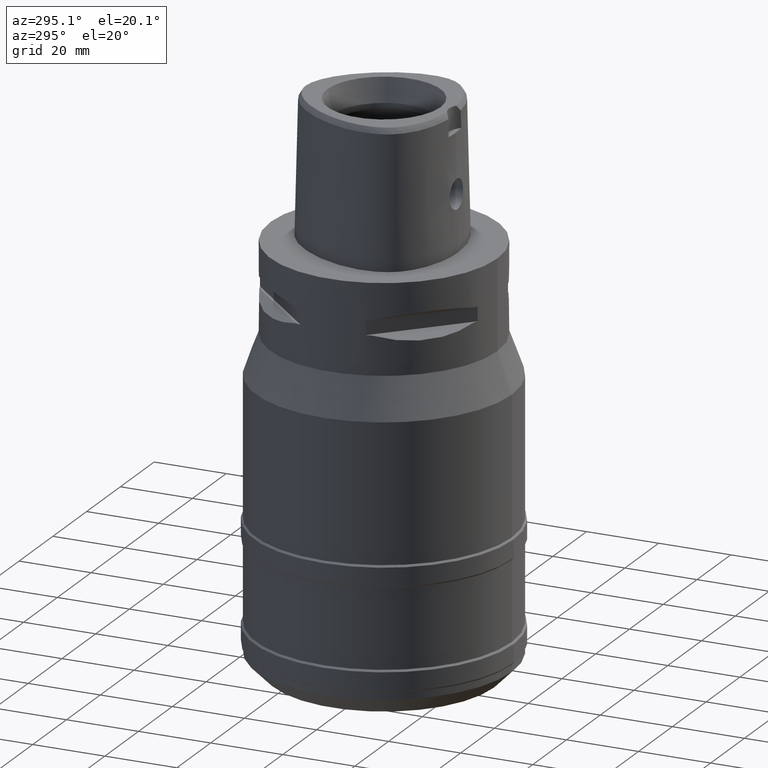
[diagram: clean part render]
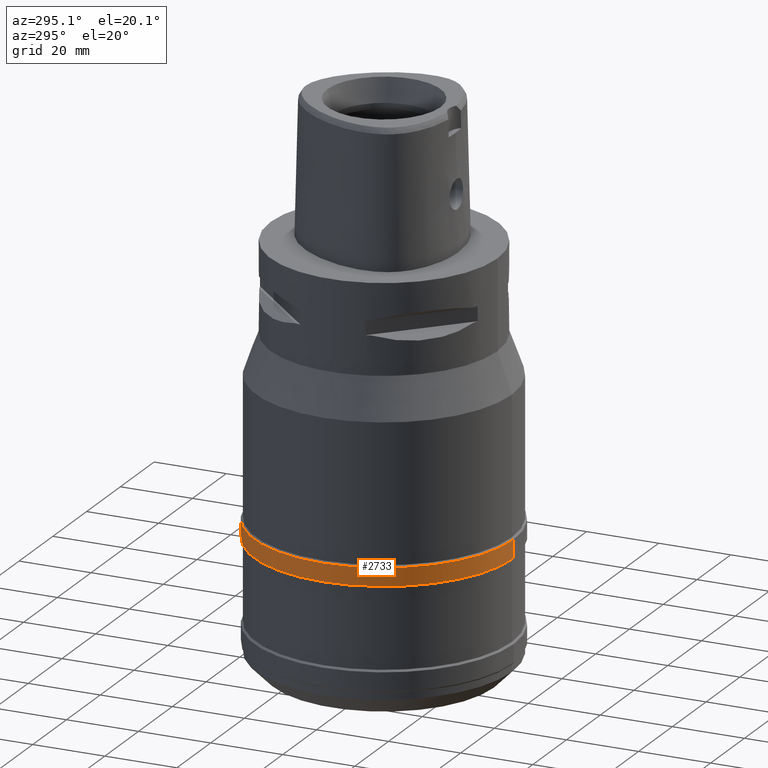
[diagram: same view with one face highlighted and labeled with its STEP entity id]
A machine part, auxiliary view. The second image highlights one B-rep face of the part: STEP entity #2733.
In plain terms, the highlighted cylindrical surface (partial cylindrical patch) has radius 36 mm, axis along (0, 0, -1).
Its self-contained STEP definition (entity closure, byte-faithful):
#640=CARTESIAN_POINT('',(0.E0,0.E0,-7.45E1));
#641=DIRECTION('',(0.E0,0.E0,-1.E0));
#642=DIRECTION('',(0.E0,-1.E0,0.E0));
#643=AXIS2_PLACEMENT_3D('',#640,#641,#642);
#648=DIRECTION('',(0.E0,0.E0,-1.E0));
#649=VECTOR('',#648,5.E0);
#650=CARTESIAN_POINT('',(0.E0,-3.6E1,-7.45E1));
#651=LINE('',#650,#649);
#655=DIRECTION('',(0.E0,0.E0,-1.E0));
#656=VECTOR('',#655,5.E0);
#657=CARTESIAN_POINT('',(0.E0,3.6E1,-7.45E1));
#658=LINE('',#657,#656);
#685=CARTESIAN_POINT('',(0.E0,0.E0,-7.95E1));
#686=DIRECTION('',(0.E0,0.E0,1.E0));
#687=DIRECTION('',(0.E0,1.E0,0.E0));
#688=AXIS2_PLACEMENT_3D('',#685,#686,#687);
#1748=CARTESIAN_POINT('',(0.E0,3.6E1,-7.45E1));
#1749=VERTEX_POINT('',#1748);
#1750=CARTESIAN_POINT('',(0.E0,-3.6E1,-7.45E1));
#1751=VERTEX_POINT('',#1750);
#1752=CARTESIAN_POINT('',(0.E0,3.6E1,-7.95E1));
#1753=VERTEX_POINT('',#1752);
#1754=CARTESIAN_POINT('',(0.E0,-3.6E1,-7.95E1));
#1755=VERTEX_POINT('',#1754);
#2719=CARTESIAN_POINT('',(0.E0,1.295063990098E-14,5.75E0));
#2720=DIRECTION('',(0.E0,0.E0,-1.E0));
#2721=DIRECTION('',(0.E0,-1.E0,0.E0));
#2722=AXIS2_PLACEMENT_3D('',#2719,#2720,#2721);
#2723=CYLINDRICAL_SURFACE('',#2722,3.6E1);
#2725=ORIENTED_EDGE('',*,*,#2724,.F.);
#2726=ORIENTED_EDGE('',*,*,#2714,.F.);
#2728=ORIENTED_EDGE('',*,*,#2727,.T.);
#2730=ORIENTED_EDGE('',*,*,#2729,.F.);
#2731=EDGE_LOOP('',(#2725,#2726,#2728,#2730));
#2732=FACE_OUTER_BOUND('',#2731,.F.);
#644=CIRCLE('',#643,3.6E1);
#689=CIRCLE('',#688,3.6E1);
#2714=EDGE_CURVE('',#1751,#1749,#644,.T.);
#2724=EDGE_CURVE('',#1749,#1753,#658,.T.);
#2727=EDGE_CURVE('',#1751,#1755,#651,.T.);
#2729=EDGE_CURVE('',#1753,#1755,#689,.T.);
#2733=ADVANCED_FACE('',(#2732),#2723,.T.);